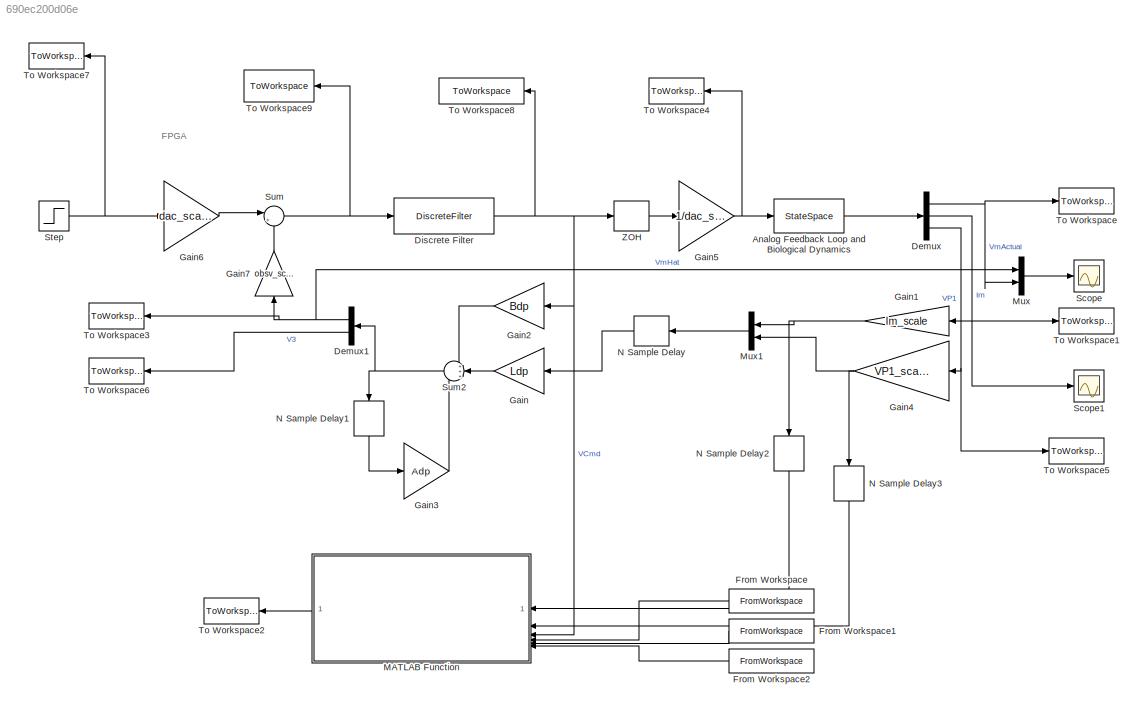
MODEL slx_690ec200d06e
KIND model
CONFIG AbsTol = auto
CONFIG EnableMultiTasking = off
CONFIG FixedStep = dTMax
CONFIG MaxStep = dTMax
CONFIG MinStep = auto
CONFIG RelTol = 1e-3
CONFIG SampleTimeConstraint = Unconstrained
CONFIG SolverName = VariableStepAuto
CONFIG StartTime = 0.0
CONFIG StopTime = Tsim
BLOCK [StateSpace] Analog Feedback Loop and Biological Dynamics
  A = A
  B = B
  C = C
  D = D
  InitialCondition = x0
BLOCK [Demux] Demux
  Outputs = 3
BLOCK [Demux] Demux1
  NameLocation = top
  Outputs = 2
BLOCK [DiscreteFilter] Discrete Filter
  Denominator = [1 a1 a2]
  InputPortMap = u0
  Numerator = [b0 b1 b2]
  SampleTime = Ts
BLOCK [FromWorkspace] From Workspace
  Interpolate = off
  OutputAfterFinalValue = Holding final value
  SampleTime = Ts
  VariableName = Ldp_sim
  ZeroCross = off
BLOCK [FromWorkspace] From Workspace1
  Interpolate = off
  OutputAfterFinalValue = Holding final value
  SampleTime = Ts
  VariableName = Adp_sim
  ZeroCross = off
BLOCK [FromWorkspace] From Workspace2
  Interpolate = off
  OutputAfterFinalValue = Setting to zero
  SampleTime = Ts
  VariableName = Bdp_sim
  ZeroCross = off
BLOCK [Gain] Gain
  Gain = Ldp
  Multiplication = Matrix(K*u)
  NameLocation = top
BLOCK [Gain] Gain1
  Gain = Im_scale
  NameLocation = top
BLOCK [Gain] Gain2
  Gain = Bdp
  Multiplication = Matrix(K*u)
  NameLocation = top
BLOCK [Gain] Gain3
  Gain = Adp
  Multiplication = Matrix(K*u)
BLOCK [Gain] Gain4
  Gain = VP1_scale
  NameLocation = top
BLOCK [Gain] Gain5
  Gain = 1/dac_scale
BLOCK [Gain] Gain6
  Gain = dac_scale
BLOCK [Gain] Gain7
  Gain = obsv_scale
  NameLocation = right
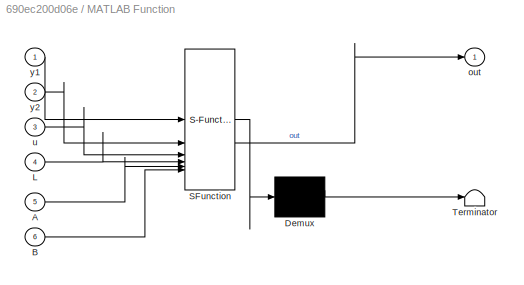
BLOCK [SubSystem] MATLAB Function
  ErrorFcn = Stateflow.Translate.translate
  PermitHierarchicalResolution = ExplicitOnly
  SFBlockType = MATLAB Function
  TreatAsAtomicUnit = on
BLOCK [Demux] MATLAB Function/ Demux 
  Outputs = 1
BLOCK [S-Function] MATLAB Function/ SFunction 
  EnableBusSupport = on
  FunctionName = sf_sfun
  PortCounts = [6 2]
  SFcnIsStateOwnerBlock = off
  SFunctionDeploymentMode = off
  Tag = Stateflow S-Function 2
BLOCK [Terminator] MATLAB Function/ Terminator 
BLOCK [Inport] MATLAB Function/A
  Port = 5
BLOCK [Inport] MATLAB Function/B
  Port = 6
BLOCK [Inport] MATLAB Function/L
  Port = 4
BLOCK [Outport] MATLAB Function/out
BLOCK [Inport] MATLAB Function/u
  Port = 3
BLOCK [Inport] MATLAB Function/y1
BLOCK [Inport] MATLAB Function/y2
  Port = 2
BLOCK [Mux] Mux
  DisplayOption = bar
  Inputs = 2
BLOCK [Mux] Mux1
  DisplayOption = bar
  Inputs = 2
  NameLocation = top
BLOCK [Delay] N Sample Delay
  DelayLength = N
  InputPortMap = u0
  NameLocation = top
  SampleTime = Ts
BLOCK [Delay] N Sample Delay1
  DelayLength = 1
  InputPortMap = u0
  NameLocation = left
  SampleTime = Ts
BLOCK [Delay] N Sample Delay2
  DelayLength = 3
  InputPortMap = u0
  NameLocation = left
  SampleTime = Ts
BLOCK [Delay] N Sample Delay3
  DelayLength = 3
  InputPortMap = u0
  NameLocation = left
  SampleTime = Ts
BLOCK [Scope] Scope
  Floating = off
  NumInputPorts = 1
  ScopeSpecificationString = Simulink.scopes.TimeScopeBlockCfg('CurrentConfiguration', extmgr.ConfigurationSet(extmgr.Configuration('Core','General UI',true),extmgr.Configuration('Core','Source UI',true),extmgr.Configuration('Sources','WiredSimulink',true),extmgr.Configuration('Visuals','Time Domain',true,'SerializedDisplays',{struct('MinYLimReal','-0.03208','MaxYLimReal','0.28868','YLabelReal','','MinYLimMag','0.00000','MaxY...<+1382ch>
BLOCK [Scope] Scope1
  Floating = off
  NumInputPorts = 1
  ScopeSpecificationString = Simulink.scopes.TimeScopeBlockCfg('CurrentConfiguration', extmgr.ConfigurationSet(extmgr.Configuration('Core','General UI',true),extmgr.Configuration('Core','Source UI',true),extmgr.Configuration('Sources','WiredSimulink',true,'DataLoggingVariableName','ScopeData1'),extmgr.Configuration('Visuals','Time Domain',true,'SerializedDisplays',{struct('MinYLimReal','-0.00006','MaxYLimReal','0.00043','YLab...<+1409ch>
BLOCK [Step] Step
  After = VmDes
  SampleTime = 0
  Time = 0
BLOCK [Sum] Sum
  Inputs = |+-
BLOCK [Sum] Sum2
  Inputs = +++
  NameLocation = top
BLOCK [ToWorkspace] To Workspace
  FixptAsFi = on
  MaxDataPoints = inf
  SampleTime = -1
  SaveFormat = Timeseries
  VariableName = Vm
BLOCK [ToWorkspace] To Workspace1
  FixptAsFi = on
  MaxDataPoints = inf
  SampleTime = -1
  SaveFormat = Timeseries
  VariableName = Im
BLOCK [ToWorkspace] To Workspace2
  FixptAsFi = on
  MaxDataPoints = inf
  SampleTime = -1
  SaveFormat = Timeseries
  VariableName = Est_fixed
BLOCK [ToWorkspace] To Workspace3
  FixptAsFi = on
  MaxDataPoints = inf
  SampleTime = -1
  SaveFormat = Timeseries
  VariableName = VmHat
BLOCK [ToWorkspace] To Workspace4
  FixptAsFi = on
  MaxDataPoints = inf
  SampleTime = -1
  SaveFormat = Timeseries
  VariableName = VCmd
BLOCK [ToWorkspace] To Workspace5
  FixptAsFi = on
  MaxDataPoints = inf
  SampleTime = -1
  SaveFormat = Timeseries
  VariableName = VP1
BLOCK [ToWorkspace] To Workspace6
  FixptAsFi = on
  MaxDataPoints = inf
  SampleTime = -1
  SaveFormat = Timeseries
  VariableName = V3
BLOCK [ToWorkspace] To Workspace7
  FixptAsFi = on
  MaxDataPoints = inf
  SampleTime = -1
  SaveFormat = Timeseries
  VariableName = SetPt
BLOCK [ToWorkspace] To Workspace8
  FixptAsFi = on
  MaxDataPoints = inf
  SampleTime = -1
  SaveFormat = Timeseries
  VariableName = Cmd_afterPI
BLOCK [ToWorkspace] To Workspace9
  FixptAsFi = on
  MaxDataPoints = inf
  SampleTime = -1
  SaveFormat = Timeseries
  VariableName = Cmd_prePI
BLOCK [ZeroOrderHold] ZOH
  SampleTime = Ts
ANNOTATION (root): FPGA
LINE Analog Feedback Loop and Biological Dynamics:1 -> Demux:1
NET Demux1:1 -> Gain7:1, Mux:1, To Workspace3:1
LINE Demux1:2 -> To Workspace6:1
NET Demux:1 -> Mux:2, To Workspace:1
NET Demux:2 -> Gain1:1, Scope1:1, To Workspace1:1
NET Demux:3 -> Gain4:1, To Workspace5:1
NET Discrete Filter:1 -> Gain2:1, MATLAB Function:3, To Workspace8:1, ZOH:1
LINE From Workspace1:1 -> MATLAB Function:5
LINE From Workspace2:1 -> MATLAB Function:6
LINE From Workspace:1 -> MATLAB Function:4
NET Gain1:1 -> Mux1:1, N Sample Delay2:1
LINE Gain2:1 -> Sum2:1
LINE Gain3:1 -> Sum2:3
NET Gain4:1 -> Mux1:2, N Sample Delay3:1
NET Gain5:1 -> Analog Feedback Loop and Biological Dynamics:1, To Workspace4:1
LINE Gain6:1 -> Sum:1
LINE Gain7:1 -> Sum:2
LINE Gain:1 -> Sum2:2
LINE MATLAB Function:1 -> To Workspace2:1
LINE Mux1:1 -> N Sample Delay:1
LINE Mux:1 -> Scope:1
LINE N Sample Delay1:1 -> Gain3:1
LINE N Sample Delay2:1 -> MATLAB Function:1
LINE N Sample Delay3:1 -> MATLAB Function:2
LINE N Sample Delay:1 -> Gain:1
NET Step:1 -> Gain6:1, To Workspace7:1
NET Sum2:1 -> Demux1:1, N Sample Delay1:1
NET Sum:1 -> Discrete Filter:1, To Workspace9:1
LINE ZOH:1 -> Gain5:1
note: NET lines group one-source signal fan-out (src -> all destinations, sorted); 1:1 wires keep LINE
CHART MATLAB Function states=1 transitions=1
  STATE_LABEL 'eML_blk_kernel()'
  STATE_LABEL "SCRIPT:\nfunction out   = observer_fixpt(y1, y2, u, L, A, B)\n    % inputs \n    % y1, y2, y3, L, A, B\n    fm = get_fimath();\n\n    y1 = fi(y1, 1, 16,0, fm);\n    y2 = fi(y2, 1, 16,0, fm);\n    u = fi(u, 1, 16,0, fm);\n\n    persistent yest;\n    if isempty(yest)\n        yest = fi([0 0]', 1, 33, 32, fm);\n%         yest = fi([0 0]', 1, 16, 17, fm);\n    end\n\n    Lm = fi(reshape(L,2,2), 1, 32, 50, fm);\n    Am...<+414ch>"
CHART  states=0 transitions=0
